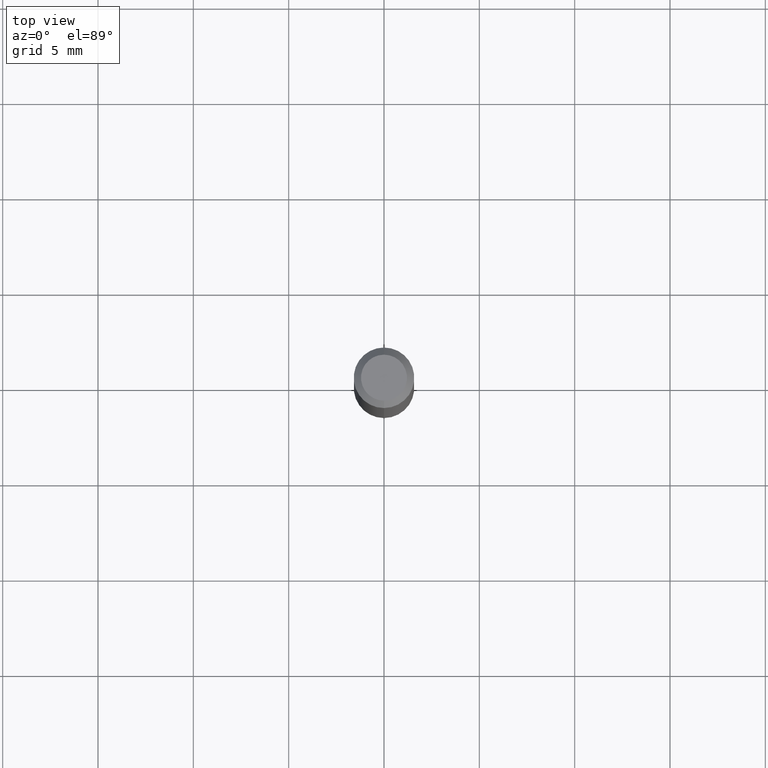
[diagram: clean part render]
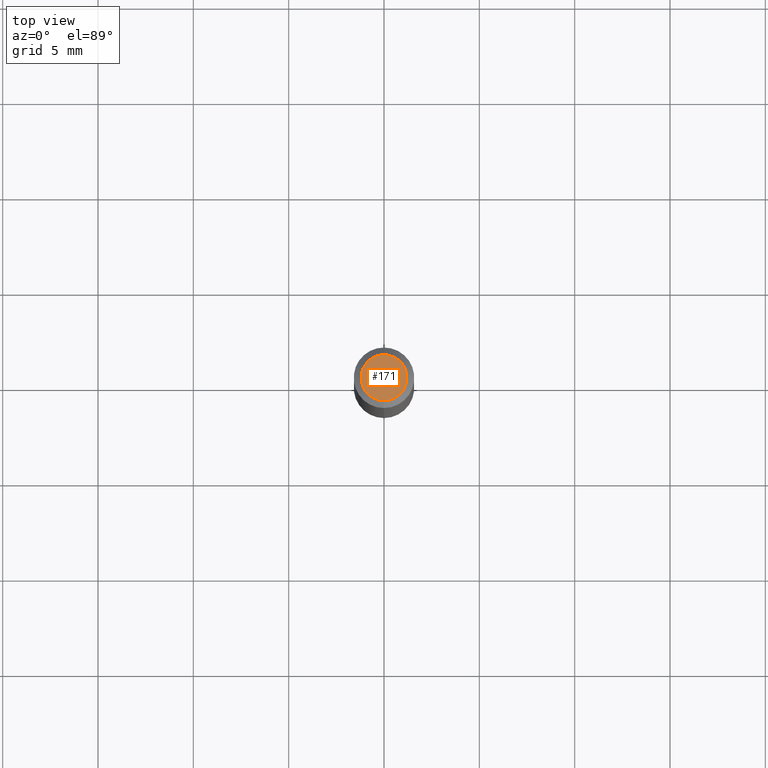
[diagram: same view with one face highlighted and labeled with its STEP entity id]
A machine part, top view. The second image highlights one B-rep face of the part: STEP entity #171.
In plain terms, the highlighted planar face has unit normal (0, -0, -1).
Its self-contained STEP definition (entity closure, byte-faithful):
#73 = ORIENTED_EDGE ( 'NONE', *, *, #428, .T. ) ;
#90 = DIRECTION ( 'NONE',  ( -6.982962677686266711E-15, -1.000000000000000000, 3.491500592038306462E-15 ) ) ;
#94 = EDGE_LOOP ( 'NONE', ( #73, #441 ) ) ;
#125 = CARTESIAN_POINT ( 'NONE',  ( 2.166527961827565846E-46, -3.093261802976753725E-32, -8.859405065060967167E-18 ) ) ;
#145 = CARTESIAN_POINT ( 'NONE',  ( 3.840629472727447874E-16, 0.04749999999999999362, -1.747056831868805136E-16 ) ) ;
#151 = VERTEX_POINT ( 'NONE', #145 ) ;
#171 = ADVANCED_FACE ( 'NONE', ( #388 ), #271, .F. ) ;
#190 = AXIS2_PLACEMENT_3D ( 'NONE', #335, #445, #512 ) ;
#193 = DIRECTION ( 'NONE',  ( 2.445455361750812783E-29, -3.491500592038306462E-15, -1.000000000000000000 ) ) ;
#249 = DIRECTION ( 'NONE',  ( -2.445455361750813344E-29, 3.491500592038306462E-15, 1.000000000000000000 ) ) ;
#253 = CIRCLE ( 'NONE', #292, 0.04749999999999999362 ) ;
#271 = PLANE ( 'NONE',  #279 ) ;
#274 = CIRCLE ( 'NONE', #190, 0.04749999999999999362 ) ;
#279 = AXIS2_PLACEMENT_3D ( 'NONE', #421, #193, #358 ) ;
#292 = AXIS2_PLACEMENT_3D ( 'NONE', #125, #249, #90 ) ;
#335 = CARTESIAN_POINT ( 'NONE',  ( 2.166527961827565846E-46, -3.093261802976753725E-32, -8.859405065060967167E-18 ) ) ;
#358 = DIRECTION ( 'NONE',  ( 6.982962677686265922E-15, 1.000000000000000000, -3.491500592038306462E-15 ) ) ;
#388 = FACE_OUTER_BOUND ( 'NONE', #94, .T. ) ;
#414 = CARTESIAN_POINT ( 'NONE',  ( -3.773273898774340269E-16, -0.04749999999999999362, 1.569868730567585608E-16 ) ) ;
#421 = CARTESIAN_POINT ( 'NONE',  ( 3.316907271900976096E-16, 0.04749999999999999362, -1.702759806543500254E-16 ) ) ;
#428 = EDGE_CURVE ( 'NONE', #151, #446, #253, .T. ) ;
#441 = ORIENTED_EDGE ( 'NONE', *, *, #452, .T. ) ;
#445 = DIRECTION ( 'NONE',  ( -2.445455361750813344E-29, 3.491500592038306462E-15, 1.000000000000000000 ) ) ;
#446 = VERTEX_POINT ( 'NONE', #414 ) ;
#452 = EDGE_CURVE ( 'NONE', #446, #151, #274, .T. ) ;
#512 = DIRECTION ( 'NONE',  ( -6.982962677686266711E-15, -1.000000000000000000, 3.491500592038306462E-15 ) ) ;